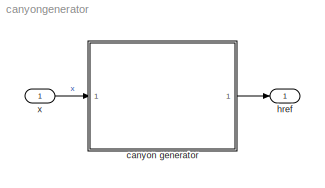
MODEL canyongenerator
KIND model
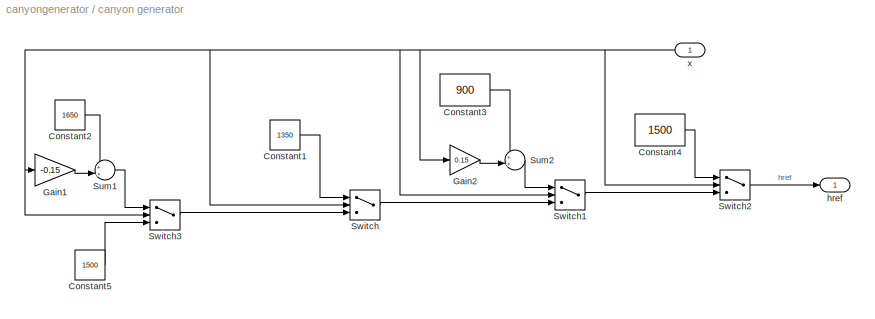
BLOCK [SubSystem] canyon generator
  FunctionWithSeparateData = off
  MaskDisplay = image(imread('refalt.jpg'))
  MaskHideContents = off
  MaskIconFrame = on
  MaskIconOpaque = on
  MaskIconRotate = none
  MaskIconUnits = autoscale
  MinAlgLoopOccurrences = off
  Opaque = off
  Ports = [1, 1]
  PropExecContextOutsideSubsystem = off
  RTWSystemCode = Auto
  RequestExecContextInheritance = off
BLOCK [Constant] canyon generator/Constant1
  OutDataType = sfix(16)
  OutScaling = 2^0
  Value = 1350
BLOCK [Constant] canyon generator/Constant2
  OutDataType = sfix(16)
  OutScaling = 2^0
  Value = 1650
BLOCK [Constant] canyon generator/Constant3
  OutDataType = sfix(16)
  OutScaling = 2^0
  Value = 900
BLOCK [Constant] canyon generator/Constant4
  OutDataType = sfix(16)
  OutScaling = 2^0
  Value = 1500
BLOCK [Constant] canyon generator/Constant5
  OutDataType = sfix(16)
  OutScaling = 2^0
  Value = 1500
BLOCK [Gain] canyon generator/Gain1
  Gain = -0.15
  OutDataType = sfix(16)
  OutDataTypeMode = Inherit via internal rule
  OutDataTypeStr = Inherit: Inherit via internal rule
  OutScaling = 2^0
  ParamDataTypeStr = Inherit: Inherit via internal rule
  ParameterDataType = sfix(16)
  ParameterDataTypeMode = Inherit via internal rule
  ParameterScaling = 2^0
  SaturateOnIntegerOverflow = off
BLOCK [Gain] canyon generator/Gain2
  Gain = 0.15
  OutDataType = sfix(16)
  OutDataTypeMode = Inherit via internal rule
  OutDataTypeStr = Inherit: Inherit via internal rule
  OutScaling = 2^0
  ParamDataTypeStr = Inherit: Inherit via internal rule
  ParameterDataType = sfix(16)
  ParameterDataTypeMode = Inherit via internal rule
  ParameterScaling = 2^0
  SaturateOnIntegerOverflow = off
BLOCK [Sum] canyon generator/Sum1
  IconShape = round
  InputSameDT = off
  Inputs = ++|
  OutDataType = sfix(16)
  OutDataTypeMode = Inherit via internal rule
  OutDataTypeStr = Inherit: Inherit via internal rule
  OutScaling = 2^0
  Ports = [2, 1]
  SaturateOnIntegerOverflow = off
BLOCK [Sum] canyon generator/Sum2
  IconShape = round
  InputSameDT = off
  Inputs = ++|
  OutDataType = sfix(16)
  OutDataTypeMode = Inherit via internal rule
  OutDataTypeStr = Inherit: Inherit via internal rule
  OutScaling = 2^0
  Ports = [2, 1]
  SaturateOnIntegerOverflow = off
BLOCK [Switch] canyon generator/Switch
  InputSameDT = off
  SaturateOnIntegerOverflow = off
  Threshold = 2000
  ZeroCross = off
BLOCK [Switch] canyon generator/Switch1
  InputSameDT = off
  SaturateOnIntegerOverflow = off
  Threshold = 3000
  ZeroCross = off
BLOCK [Switch] canyon generator/Switch2
  InputSameDT = off
  SaturateOnIntegerOverflow = off
  Threshold = 4000
  ZeroCross = off
BLOCK [Switch] canyon generator/Switch3
  InputSameDT = off
  SaturateOnIntegerOverflow = off
  Threshold = 1000
  ZeroCross = off
BLOCK [Outport] canyon generator/href
  IconDisplay = Port number
  OutDataType = sfix(16)
  OutScaling = 2^0
BLOCK [Inport] canyon generator/x
  IconDisplay = Port number
  OutDataType = sfix(16)
  OutScaling = 2^0
BLOCK [Outport] href
  IconDisplay = Port number
  OutDataType = sfix(16)
  OutScaling = 2^0
BLOCK [Inport] x
  IconDisplay = Port number
  OutDataType = sfix(16)
  OutScaling = 2^0
LINE canyon generator/Constant1:1 -> canyon generator/Switch:1
LINE canyon generator/Constant2:1 -> canyon generator/Sum1:1
LINE canyon generator/Constant3:1 -> canyon generator/Sum2:1
LINE canyon generator/Constant4:1 -> canyon generator/Switch2:1
LINE canyon generator/Constant5:1 -> canyon generator/Switch3:3
LINE canyon generator/Gain1:1 -> canyon generator/Sum1:2
LINE canyon generator/Gain2:1 -> canyon generator/Sum2:2
LINE canyon generator/Sum1:1 -> canyon generator/Switch3:1
LINE canyon generator/Sum2:1 -> canyon generator/Switch1:1
LINE canyon generator/Switch1:1 -> canyon generator/Switch2:3
LINE canyon generator/Switch2:1 -> canyon generator/href:1
LINE canyon generator/Switch3:1 -> canyon generator/Switch:3
LINE canyon generator/Switch:1 -> canyon generator/Switch1:3
NET canyon generator/x:1 -> canyon generator/Gain1:1, canyon generator/Gain2:1, canyon generator/Switch1:2, canyon generator/Switch2:2, canyon generator/Switch3:2, canyon generator/Switch:2
LINE canyon generator:1 -> href:1
LINE x:1 -> canyon generator:1
note: NET lines group one-source signal fan-out (src -> all destinations, sorted); 1:1 wires keep LINE
